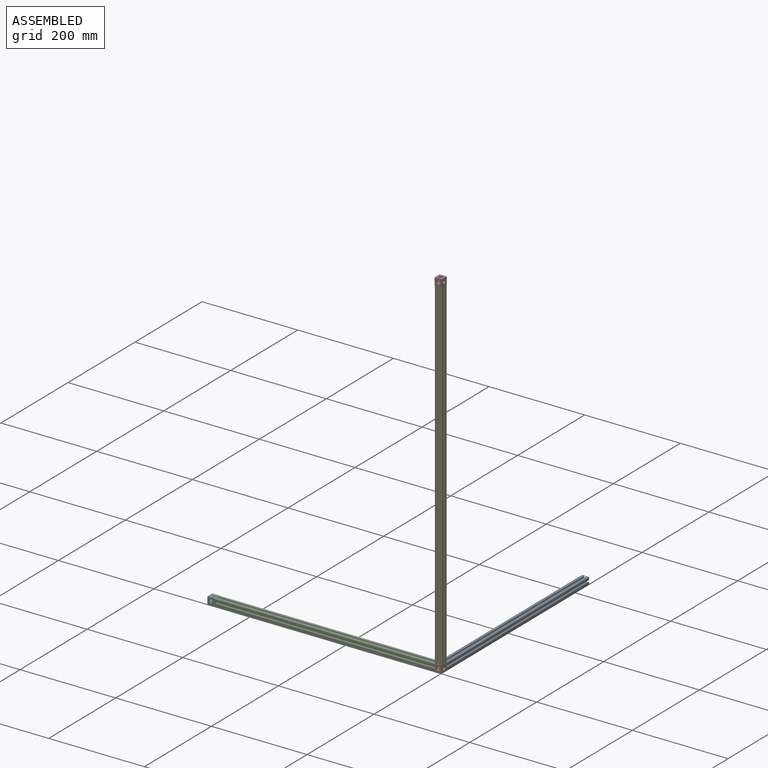
[diagram: assembled view]
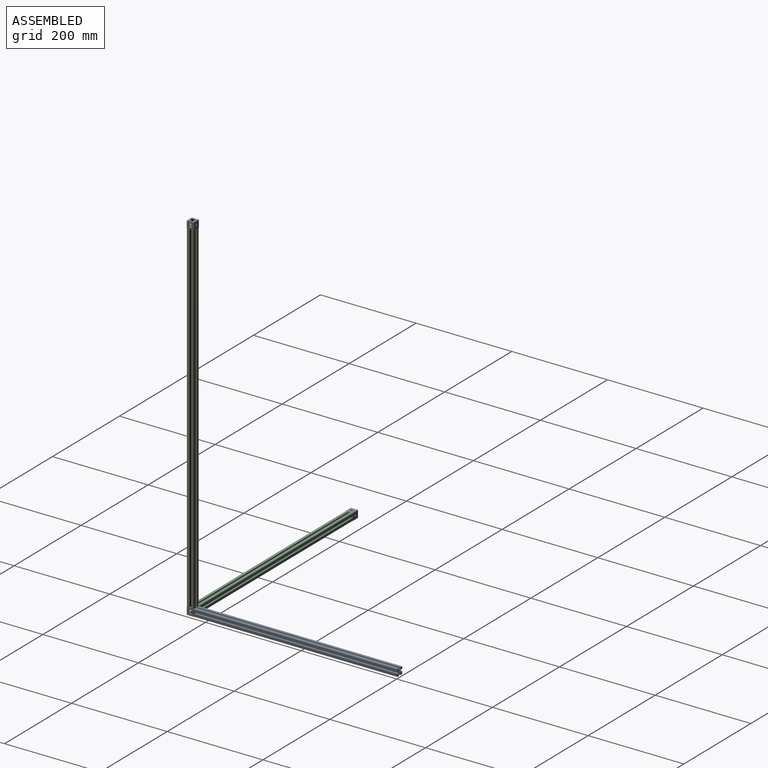
[diagram: assembled view, second angle]
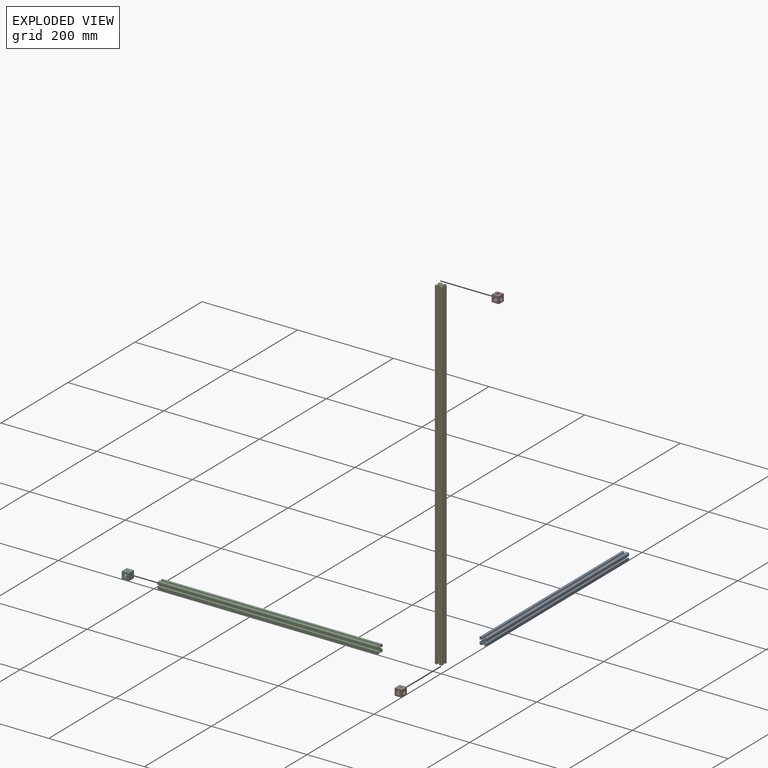
[diagram: exploded view]
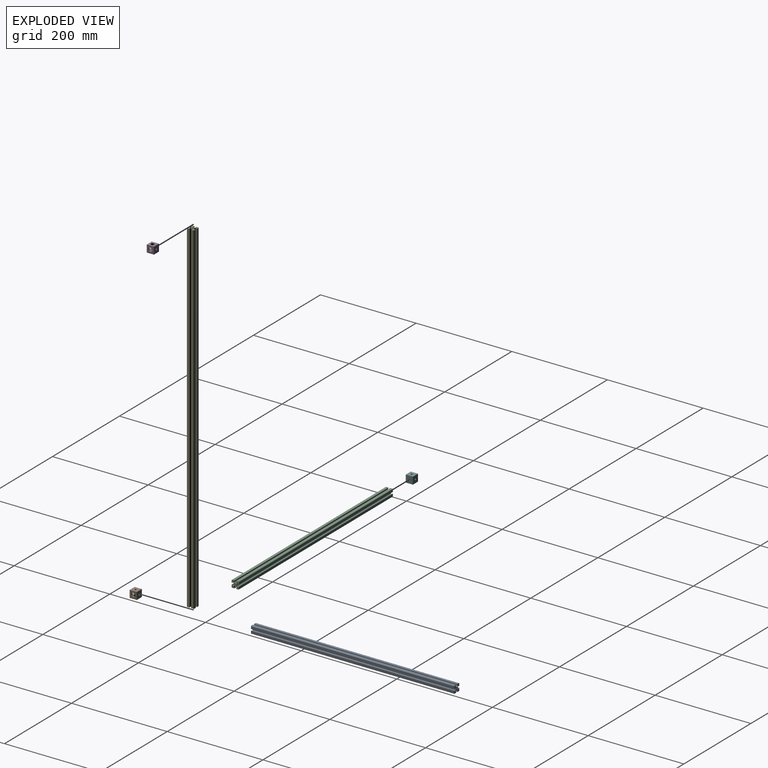
[diagram: exploded view, second angle]
ASSEMBLY  parts=6 mates=3
PART A: 63 faces, bbox 15x15x425 mm
  f0: plane 425x1mm, normal (-0.71,-0.71,0), area 601mm2, adj f1,f60,f61,f62
  f1: plane 425x1.33mm, normal (-1,0,0), area 565.4mm2, adj f0,f2,f61,f62
  f2: plane 425x0.52mm, normal (-0.87,-0.5,0), area 255mm2, adj f1,f3,f61,f62
  f3: plane 425x0.52mm, normal (-0.87,0.5,0), area 255mm2, adj f2,f4,f61,f62
  f4: plane 425x1.33mm, normal (-1,0,0), area 565.4mm2, adj f3,f5,f61,f62
  f5: plane 425x1mm, normal (-0.71,0.71,0), area 601mm2, adj f4,f6,f61,f62
  f6: plane 425x2.6mm, normal (0,1,0), area 1105mm2, adj f5,f7,f61,f62
  f7: plane 425x1.15mm, normal (1,0,0), area 488.8mm2, adj f6,f8,f61,f62
  f8: plane 425x1.1mm, normal (0,1,0), area 467.5mm2, adj f7,f9,f61,f62
  f9: plane 425x4.8mm, normal (-1,0,0), area 2040mm2, adj f8,f10,f61,f62
  f10: cylinder r=1mm len=425mm, axis (0,0,-1), area 667.6mm2, adj f9,f11,f61,f62
  f11: plane 425x4.8mm, normal (0,-1,0), area 2040mm2, adj f10,f12,f61,f62
  f12: plane 425x1.1mm, normal (1,0,0), area 467.5mm2, adj f11,f13,f61,f62
  f13: plane 425x1.15mm, normal (0,1,0), area 488.8mm2, adj f12,f14,f61,f62
  f14: plane 425x2.6mm, normal (1,0,0), area 1105mm2, adj f13,f15,f61,f62
  f15: plane 425x1mm, normal (0.71,-0.71,0), area 601mm2, adj f14,f16,f61,f62
  f16: plane 425x1.33mm, normal (0,-1,0), area 565.4mm2, adj f15,f17,f61,f62
  f17: plane 425x0.52mm, normal (0.5,-0.87,0), area 255mm2, adj f16,f18,f61,f62
  f18: plane 425x0.52mm, normal (-0.5,-0.87,0), area 255mm2, adj f17,f19,f61,f62
  f19: plane 425x1.33mm, normal (0,-1,0), area 565.4mm2, adj f18,f20,f61,f62
  f20: plane 425x1mm, normal (-0.71,-0.71,0), area 601mm2, adj f19,f21,f61,f62
  f21: plane 425x2.6mm, normal (-1,0,0), area 1105mm2, adj f20,f22,f61,f62
  f22: plane 425x1.15mm, normal (0,1,0), area 488.8mm2, adj f21,f23,f61,f62
  f23: plane 425x1.1mm, normal (-1,0,0), area 467.5mm2, adj f22,f24,f61,f62
  f24: plane 425x4.8mm, normal (0,-1,0), area 2040mm2, adj f23,f25,f61,f62
  f25: cylinder r=1mm len=425mm, axis (0,0,-1), area 667.6mm2, adj f24,f26,f61,f62
  f26: plane 425x4.8mm, normal (1,0,0), area 2040mm2, adj f25,f27,f61,f62
  f27: plane 425x1.1mm, normal (0,1,0), area 467.5mm2, adj f26,f28,f61,f62
  f28: plane 425x1.15mm, normal (-1,0,0), area 488.8mm2, adj f27,f29,f61,f62
  f29: plane 425x2.6mm, normal (0,1,0), area 1105mm2, adj f28,f30,f61,f62
  f30: plane 425x1mm, normal (0.71,0.71,0), area 601mm2, adj f29,f31,f61,f62
  f31: plane 425x1.33mm, normal (1,0,0), area 565.4mm2, adj f30,f32,f61,f62
  f32: plane 425x0.52mm, normal (0.87,0.5,0), area 255mm2, adj f31,f33,f61,f62
  f33: plane 425x0.52mm, normal (0.87,-0.5,0), area 255mm2, adj f32,f34,f61,f62
  f34: plane 425x1.33mm, normal (1,0,0), area 565.4mm2, adj f33,f35,f61,f62
  f35: plane 425x1mm, normal (0.71,-0.71,0), area 601mm2, adj f34,f36,f61,f62
  f36: plane 425x2.6mm, normal (0,-1,0), area 1105mm2, adj f35,f37,f61,f62
  f37: plane 425x1.15mm, normal (-1,0,0), area 488.8mm2, adj f36,f38,f61,f62
  f38: plane 425x1.1mm, normal (0,-1,0), area 467.5mm2, adj f37,f39,f61,f62
  f39: plane 425x4.8mm, normal (1,0,0), area 2040mm2, adj f38,f40,f61,f62
  f40: cylinder r=1mm len=425mm, axis (0,0,-1), area 667.6mm2, adj f39,f41,f61,f62
  f41: plane 425x4.8mm, normal (0,1,0), area 2040mm2, adj f40,f42,f61,f62
  f42: plane 425x1.1mm, normal (-1,0,0), area 467.5mm2, adj f41,f43,f61,f62
  f43: plane 425x1.15mm, normal (0,-1,0), area 488.8mm2, adj f42,f44,f61,f62
  f44: plane 425x2.6mm, normal (-1,0,0), area 1105mm2, adj f43,f45,f61,f62
  f45: plane 425x1mm, normal (-0.71,0.71,0), area 601mm2, adj f44,f46,f61,f62
  f46: plane 425x1.33mm, normal (0,1,0), area 565.4mm2, adj f45,f47,f61,f62
  f47: plane 425x0.52mm, normal (-0.5,0.87,0), area 255mm2, adj f46,f48,f61,f62
  f48: plane 425x0.52mm, normal (0.5,0.87,0), area 255mm2, adj f47,f49,f61,f62
  f49: plane 425x1.33mm, normal (0,1,0), area 565.4mm2, adj f48,f50,f61,f62
  f50: plane 425x1mm, normal (0.71,0.71,0), area 601mm2, adj f49,f51,f61,f62
  f51: plane 425x2.6mm, normal (1,0,0), area 1105mm2, adj f50,f52,f61,f62
  f52: plane 425x1.15mm, normal (0,-1,0), area 488.8mm2, adj f51,f53,f61,f62
  f53: plane 425x1.1mm, normal (1,0,0), area 467.5mm2, adj f52,f54,f61,f62
  f54: plane 425x4.8mm, normal (0,1,0), area 2040mm2, adj f53,f55,f61,f62
  f55: cylinder r=1mm len=425mm, axis (0,0,-1), area 667.6mm2, adj f54,f56,f61,f62
  f56: plane 425x4.8mm, normal (-1,0,0), area 2040mm2, adj f55,f57,f61,f62
  f57: plane 425x1.1mm, normal (0,-1,0), area 467.5mm2, adj f56,f58,f61,f62
  f58: plane 425x1.15mm, normal (1,0,0), area 488.8mm2, adj f57,f60,f61,f62
  f59: cylinder r=1.25mm len=425mm, axis (0,0,-1), area 3337.9mm2, adj f61,f62
  f60: plane 425x2.6mm, normal (0,-1,0), area 1105mm2, adj f0,f58,f61,f62
  f61: plane 15x15mm, normal (0,0,1), area 125.6mm2, adj f0,f1,f2,f3,f4,f5,f6,f7
  f62: plane 15x15mm, normal (0,0,-1), area 125.6mm2, adj f0,f1,f2,f3,f4,f5,f6,f7
PART B: 18 faces, bbox 15x15x15 mm
  f0: cylinder r=1.75mm len=3.5mm, axis (0,1,0), area 18.1mm2, adj f5,f16
  f1: cylinder r=1.75mm len=3.5mm, axis (0,0,1), area 18.1mm2, adj f8,f15
  f2: cylinder r=1.75mm len=3.5mm, axis (-1,0,0), area 18.1mm2, adj f6,f14
  f3: plane 15x15mm, normal (0,1,0), area 174.7mm2, adj f4,f6,f7,f8,f9
  f4: plane 15x15mm, normal (-1,0,0), area 174.7mm2, adj f3,f5,f7,f8,f12
  f5: plane 15x15mm, normal (0,-1,0), area 215.4mm2, adj f0,f4,f6,f7,f8
  f6: plane 15x15mm, normal (1,0,0), area 215.4mm2, adj f2,f3,f5,f7,f8
  f7: plane 15x15mm, normal (0,0,1), area 174.7mm2, adj f3,f4,f5,f6,f11
  f8: plane 15x15mm, normal (0,0,-1), area 215.4mm2, adj f1,f3,f4,f5,f6
  f9: cylinder r=4mm len=8mm, axis (0,1,0), area 98mm2, adj f3,f10,f11,f12,f13
  f10: cylinder r=4mm len=8mm, axis (-1,0,0), area 22.6mm2, adj f9,f11,f13,f14,f17
  f11: cylinder r=4mm len=8mm, axis (0,0,1), area 98mm2, adj f7,f9,f10,f12,f17
  f12: cylinder r=4mm len=8mm, axis (-1,0,0), area 98mm2, adj f4,f9,f11,f13,f17
  f13: cylinder r=4mm len=8mm, axis (0,0,1), area 22.6mm2, adj f9,f10,f12,f15,f17
  f14: cone r=0mm half-angle=59deg, axis (-1,0,0), area 47.4mm2, adj f2,f10
  f15: cone r=0mm half-angle=59deg, axis (0,0,1), area 47.4mm2, adj f1,f13
  f16: cone r=0mm half-angle=59deg, axis (0,1,0), area 47.4mm2, adj f0,f17
  f17: cylinder r=4mm len=8mm, axis (0,1,0), area 22.6mm2, adj f10,f11,f12,f13,f16
PART C: 63 faces, bbox 15x15x460 mm
  f0: plane 460x1mm, normal (-0.71,-0.71,0), area 650.5mm2, adj f1,f60,f61,f62
  f1: plane 460x1.33mm, normal (-1,0,0), area 612mm2, adj f0,f2,f61,f62
  f2: plane 460x0.52mm, normal (-0.87,-0.5,0), area 276mm2, adj f1,f3,f61,f62
  f3: plane 460x0.52mm, normal (-0.87,0.5,0), area 276mm2, adj f2,f4,f61,f62
  f4: plane 460x1.33mm, normal (-1,0,0), area 612mm2, adj f3,f5,f61,f62
  f5: plane 460x1mm, normal (-0.71,0.71,0), area 650.5mm2, adj f4,f6,f61,f62
  f6: plane 460x2.6mm, normal (0,1,0), area 1196mm2, adj f5,f7,f61,f62
  f7: plane 460x1.15mm, normal (1,0,0), area 529mm2, adj f6,f8,f61,f62
  f8: plane 460x1.1mm, normal (0,1,0), area 506mm2, adj f7,f9,f61,f62
  f9: plane 460x4.8mm, normal (-1,0,0), area 2208mm2, adj f8,f10,f61,f62
  f10: cylinder r=1mm len=460mm, axis (0,0,-1), area 722.6mm2, adj f9,f11,f61,f62
  f11: plane 460x4.8mm, normal (0,-1,0), area 2208mm2, adj f10,f12,f61,f62
  f12: plane 460x1.1mm, normal (1,0,0), area 506mm2, adj f11,f13,f61,f62
  f13: plane 460x1.15mm, normal (0,1,0), area 529mm2, adj f12,f14,f61,f62
  f14: plane 460x2.6mm, normal (1,0,0), area 1196mm2, adj f13,f15,f61,f62
  f15: plane 460x1mm, normal (0.71,-0.71,0), area 650.5mm2, adj f14,f16,f61,f62
  f16: plane 460x1.33mm, normal (0,-1,0), area 612mm2, adj f15,f17,f61,f62
  f17: plane 460x0.52mm, normal (0.5,-0.87,0), area 276mm2, adj f16,f18,f61,f62
  f18: plane 460x0.52mm, normal (-0.5,-0.87,0), area 276mm2, adj f17,f19,f61,f62
  f19: plane 460x1.33mm, normal (0,-1,0), area 612mm2, adj f18,f20,f61,f62
  f20: plane 460x1mm, normal (-0.71,-0.71,0), area 650.5mm2, adj f19,f21,f61,f62
  f21: plane 460x2.6mm, normal (-1,0,0), area 1196mm2, adj f20,f22,f61,f62
  f22: plane 460x1.15mm, normal (0,1,0), area 529mm2, adj f21,f23,f61,f62
  f23: plane 460x1.1mm, normal (-1,0,0), area 506mm2, adj f22,f24,f61,f62
  f24: plane 460x4.8mm, normal (0,-1,0), area 2208mm2, adj f23,f25,f61,f62
  f25: cylinder r=1mm len=460mm, axis (0,0,-1), area 722.6mm2, adj f24,f26,f61,f62
  f26: plane 460x4.8mm, normal (1,0,0), area 2208mm2, adj f25,f27,f61,f62
  f27: plane 460x1.1mm, normal (0,1,0), area 506mm2, adj f26,f28,f61,f62
  f28: plane 460x1.15mm, normal (-1,0,0), area 529mm2, adj f27,f29,f61,f62
  f29: plane 460x2.6mm, normal (0,1,0), area 1196mm2, adj f28,f30,f61,f62
  f30: plane 460x1mm, normal (0.71,0.71,0), area 650.5mm2, adj f29,f31,f61,f62
  f31: plane 460x1.33mm, normal (1,0,0), area 612mm2, adj f30,f32,f61,f62
  f32: plane 460x0.52mm, normal (0.87,0.5,0), area 276mm2, adj f31,f33,f61,f62
  f33: plane 460x0.52mm, normal (0.87,-0.5,0), area 276mm2, adj f32,f34,f61,f62
  f34: plane 460x1.33mm, normal (1,0,0), area 612mm2, adj f33,f35,f61,f62
  f35: plane 460x1mm, normal (0.71,-0.71,0), area 650.5mm2, adj f34,f36,f61,f62
  f36: plane 460x2.6mm, normal (0,-1,0), area 1196mm2, adj f35,f37,f61,f62
  f37: plane 460x1.15mm, normal (-1,0,0), area 529mm2, adj f36,f38,f61,f62
  f38: plane 460x1.1mm, normal (0,-1,0), area 506mm2, adj f37,f39,f61,f62
  f39: plane 460x4.8mm, normal (1,0,0), area 2208mm2, adj f38,f40,f61,f62
  f40: cylinder r=1mm len=460mm, axis (0,0,-1), area 722.6mm2, adj f39,f41,f61,f62
  f41: plane 460x4.8mm, normal (0,1,0), area 2208mm2, adj f40,f42,f61,f62
  f42: plane 460x1.1mm, normal (-1,0,0), area 506mm2, adj f41,f43,f61,f62
  f43: plane 460x1.15mm, normal (0,-1,0), area 529mm2, adj f42,f44,f61,f62
  f44: plane 460x2.6mm, normal (-1,0,0), area 1196mm2, adj f43,f45,f61,f62
  f45: plane 460x1mm, normal (-0.71,0.71,0), area 650.5mm2, adj f44,f46,f61,f62
  f46: plane 460x1.33mm, normal (0,1,0), area 612mm2, adj f45,f47,f61,f62
  f47: plane 460x0.52mm, normal (-0.5,0.87,0), area 276mm2, adj f46,f48,f61,f62
  f48: plane 460x0.52mm, normal (0.5,0.87,0), area 276mm2, adj f47,f49,f61,f62
  f49: plane 460x1.33mm, normal (0,1,0), area 612mm2, adj f48,f50,f61,f62
  f50: plane 460x1mm, normal (0.71,0.71,0), area 650.5mm2, adj f49,f51,f61,f62
  f51: plane 460x2.6mm, normal (1,0,0), area 1196mm2, adj f50,f52,f61,f62
  f52: plane 460x1.15mm, normal (0,-1,0), area 529mm2, adj f51,f53,f61,f62
  f53: plane 460x1.1mm, normal (1,0,0), area 506mm2, adj f52,f54,f61,f62
  f54: plane 460x4.8mm, normal (0,1,0), area 2208mm2, adj f53,f55,f61,f62
  f55: cylinder r=1mm len=460mm, axis (0,0,-1), area 722.6mm2, adj f54,f56,f61,f62
  f56: plane 460x4.8mm, normal (-1,0,0), area 2208mm2, adj f55,f57,f61,f62
  f57: plane 460x1.1mm, normal (0,-1,0), area 506mm2, adj f56,f58,f61,f62
  f58: plane 460x1.15mm, normal (1,0,0), area 529mm2, adj f57,f60,f61,f62
  f59: cylinder r=1.25mm len=460mm, axis (0,0,-1), area 3612.8mm2, adj f61,f62
  f60: plane 460x2.6mm, normal (0,-1,0), area 1196mm2, adj f0,f58,f61,f62
  f61: plane 15x15mm, normal (0,0,1), area 125.6mm2, adj f0,f1,f2,f3,f4,f5,f6,f7
  f62: plane 15x15mm, normal (0,0,-1), area 125.6mm2, adj f0,f1,f2,f3,f4,f5,f6,f7
PART D: same geometry as B
PART E: 63 faces, bbox 15x15x715 mm
  f0: plane 715x1mm, normal (-0.71,-0.71,0), area 1011.2mm2, adj f1,f60,f61,f62
  f1: plane 715x1.33mm, normal (-1,0,0), area 951.2mm2, adj f0,f2,f61,f62
  f2: plane 715x0.52mm, normal (-0.87,-0.5,0), area 429mm2, adj f1,f3,f61,f62
  f3: plane 715x0.52mm, normal (-0.87,0.5,0), area 429mm2, adj f2,f4,f61,f62
  f4: plane 715x1.33mm, normal (-1,0,0), area 951.2mm2, adj f3,f5,f61,f62
  f5: plane 715x1mm, normal (-0.71,0.71,0), area 1011.2mm2, adj f4,f6,f61,f62
  f6: plane 715x2.6mm, normal (0,1,0), area 1859mm2, adj f5,f7,f61,f62
  f7: plane 715x1.15mm, normal (1,0,0), area 822.2mm2, adj f6,f8,f61,f62
  f8: plane 715x1.1mm, normal (0,1,0), area 786.5mm2, adj f7,f9,f61,f62
  f9: plane 715x4.8mm, normal (-1,0,0), area 3432mm2, adj f8,f10,f61,f62
  f10: cylinder r=1mm len=715mm, axis (0,0,-1), area 1123.1mm2, adj f9,f11,f61,f62
  f11: plane 715x4.8mm, normal (0,-1,0), area 3432mm2, adj f10,f12,f61,f62
  f12: plane 715x1.1mm, normal (1,0,0), area 786.5mm2, adj f11,f13,f61,f62
  f13: plane 715x1.15mm, normal (0,1,0), area 822.2mm2, adj f12,f14,f61,f62
  f14: plane 715x2.6mm, normal (1,0,0), area 1859mm2, adj f13,f15,f61,f62
  f15: plane 715x1mm, normal (0.71,-0.71,0), area 1011.2mm2, adj f14,f16,f61,f62
  f16: plane 715x1.33mm, normal (0,-1,0), area 951.2mm2, adj f15,f17,f61,f62
  f17: plane 715x0.52mm, normal (0.5,-0.87,0), area 429mm2, adj f16,f18,f61,f62
  f18: plane 715x0.52mm, normal (-0.5,-0.87,0), area 429mm2, adj f17,f19,f61,f62
  f19: plane 715x1.33mm, normal (0,-1,0), area 951.2mm2, adj f18,f20,f61,f62
  f20: plane 715x1mm, normal (-0.71,-0.71,0), area 1011.2mm2, adj f19,f21,f61,f62
  f21: plane 715x2.6mm, normal (-1,0,0), area 1859mm2, adj f20,f22,f61,f62
  f22: plane 715x1.15mm, normal (0,1,0), area 822.2mm2, adj f21,f23,f61,f62
  f23: plane 715x1.1mm, normal (-1,0,0), area 786.5mm2, adj f22,f24,f61,f62
  f24: plane 715x4.8mm, normal (0,-1,0), area 3432mm2, adj f23,f25,f61,f62
  f25: cylinder r=1mm len=715mm, axis (0,0,-1), area 1123.1mm2, adj f24,f26,f61,f62
  f26: plane 715x4.8mm, normal (1,0,0), area 3432mm2, adj f25,f27,f61,f62
  f27: plane 715x1.1mm, normal (0,1,0), area 786.5mm2, adj f26,f28,f61,f62
  f28: plane 715x1.15mm, normal (-1,0,0), area 822.2mm2, adj f27,f29,f61,f62
  f29: plane 715x2.6mm, normal (0,1,0), area 1859mm2, adj f28,f30,f61,f62
  f30: plane 715x1mm, normal (0.71,0.71,0), area 1011.2mm2, adj f29,f31,f61,f62
  f31: plane 715x1.33mm, normal (1,0,0), area 951.2mm2, adj f30,f32,f61,f62
  f32: plane 715x0.52mm, normal (0.87,0.5,0), area 429mm2, adj f31,f33,f61,f62
  f33: plane 715x0.52mm, normal (0.87,-0.5,0), area 429mm2, adj f32,f34,f61,f62
  f34: plane 715x1.33mm, normal (1,0,0), area 951.2mm2, adj f33,f35,f61,f62
  f35: plane 715x1mm, normal (0.71,-0.71,0), area 1011.2mm2, adj f34,f36,f61,f62
  f36: plane 715x2.6mm, normal (0,-1,0), area 1859mm2, adj f35,f37,f61,f62
  f37: plane 715x1.15mm, normal (-1,0,0), area 822.2mm2, adj f36,f38,f61,f62
  f38: plane 715x1.1mm, normal (0,-1,0), area 786.5mm2, adj f37,f39,f61,f62
  f39: plane 715x4.8mm, normal (1,0,0), area 3432mm2, adj f38,f40,f61,f62
  f40: cylinder r=1mm len=715mm, axis (0,0,-1), area 1123.1mm2, adj f39,f41,f61,f62
  f41: plane 715x4.8mm, normal (0,1,0), area 3432mm2, adj f40,f42,f61,f62
  f42: plane 715x1.1mm, normal (-1,0,0), area 786.5mm2, adj f41,f43,f61,f62
  f43: plane 715x1.15mm, normal (0,-1,0), area 822.2mm2, adj f42,f44,f61,f62
  f44: plane 715x2.6mm, normal (-1,0,0), area 1859mm2, adj f43,f45,f61,f62
  f45: plane 715x1mm, normal (-0.71,0.71,0), area 1011.2mm2, adj f44,f46,f61,f62
  f46: plane 715x1.33mm, normal (0,1,0), area 951.2mm2, adj f45,f47,f61,f62
  f47: plane 715x0.52mm, normal (-0.5,0.87,0), area 429mm2, adj f46,f48,f61,f62
  f48: plane 715x0.52mm, normal (0.5,0.87,0), area 429mm2, adj f47,f49,f61,f62
  f49: plane 715x1.33mm, normal (0,1,0), area 951.2mm2, adj f48,f50,f61,f62
  f50: plane 715x1mm, normal (0.71,0.71,0), area 1011.2mm2, adj f49,f51,f61,f62
  f51: plane 715x2.6mm, normal (1,0,0), area 1859mm2, adj f50,f52,f61,f62
  f52: plane 715x1.15mm, normal (0,-1,0), area 822.2mm2, adj f51,f53,f61,f62
  f53: plane 715x1.1mm, normal (1,0,0), area 786.5mm2, adj f52,f54,f61,f62
  f54: plane 715x4.8mm, normal (0,1,0), area 3432mm2, adj f53,f55,f61,f62
  f55: cylinder r=1mm len=715mm, axis (0,0,-1), area 1123.1mm2, adj f54,f56,f61,f62
  f56: plane 715x4.8mm, normal (-1,0,0), area 3432mm2, adj f55,f57,f61,f62
  f57: plane 715x1.1mm, normal (0,-1,0), area 786.5mm2, adj f56,f58,f61,f62
  f58: plane 715x1.15mm, normal (1,0,0), area 822.2mm2, adj f57,f60,f61,f62
  f59: cylinder r=1.25mm len=715mm, axis (0,0,-1), area 5615.6mm2, adj f61,f62
  f60: plane 715x2.6mm, normal (0,-1,0), area 1859mm2, adj f0,f58,f61,f62
  f61: plane 15x15mm, normal (0,0,1), area 125.6mm2, adj f0,f1,f2,f3,f4,f5,f6,f7
  f62: plane 15x15mm, normal (0,0,-1), area 125.6mm2, adj f0,f1,f2,f3,f4,f5,f6,f7
PART F: same geometry as B
PLACE A rot(axis=(0.58,0.58,-0.58),120deg) t=(11.99,201.94,14.02)mm
PLACE B rot(axis=(-0.71,-0.71,0),180deg) t=(11.99,-18.06,14.02)mm fixed
PLACE C rot(axis=(0,1,0),90deg) t=(-225.51,-18.06,14.02)mm
PLACE D rot(axis=(0.58,0.58,-0.58),120deg) t=(11.99,-18.06,744.02)mm
PLACE E rot(axis=(0.03,1,0.05),0deg) t=(11.99,-18.06,379.02)mm
PLACE F rot(axis=(-0.58,-0.58,0.58),120deg) t=(-463.01,-18.06,14.02)mm
MATE fastened B.f9 <-> C.f59  axis (-1,0,0) through (4.49,-18.06,14.02)mm
MATE fastened B.f1 <-> E.f59  axis (0,0,1) through (11.99,-18.06,21.52)mm
MATE fastened A.f59 <-> B.f10  axis (0,-1,0) through (11.99,-10.56,14.02)mm
